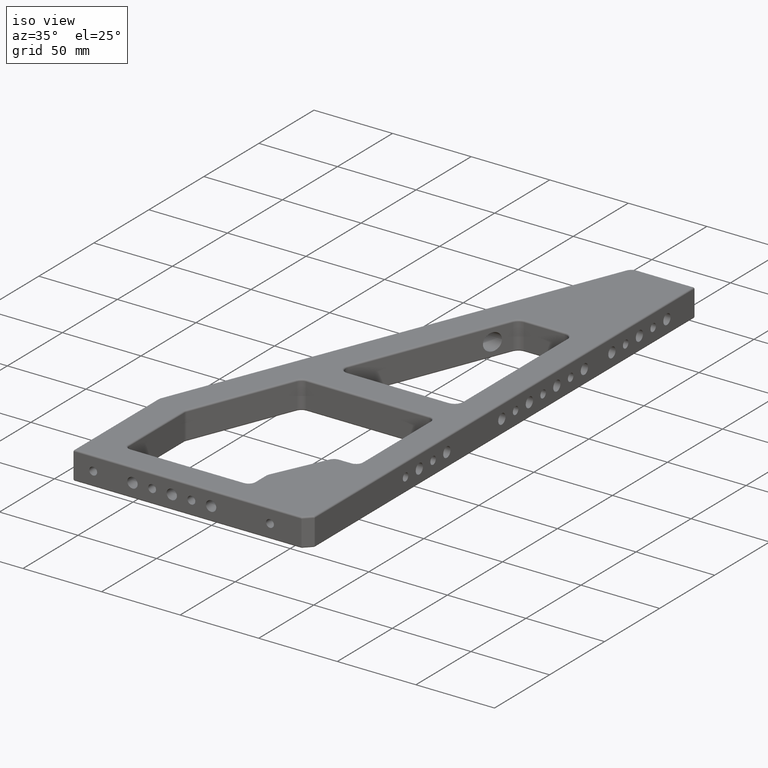
[diagram: clean part render]
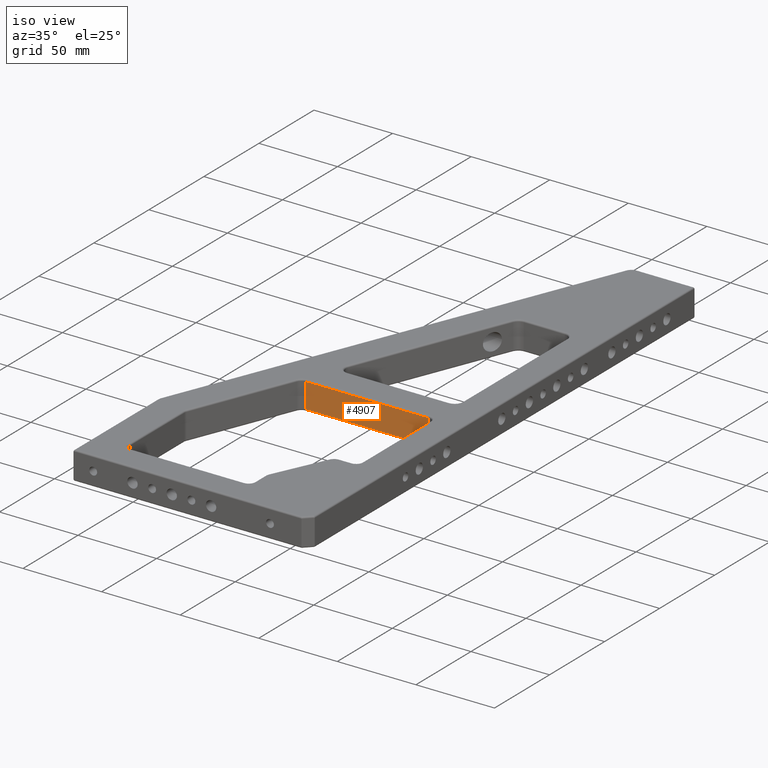
[diagram: same view with one face highlighted and labeled with its STEP entity id]
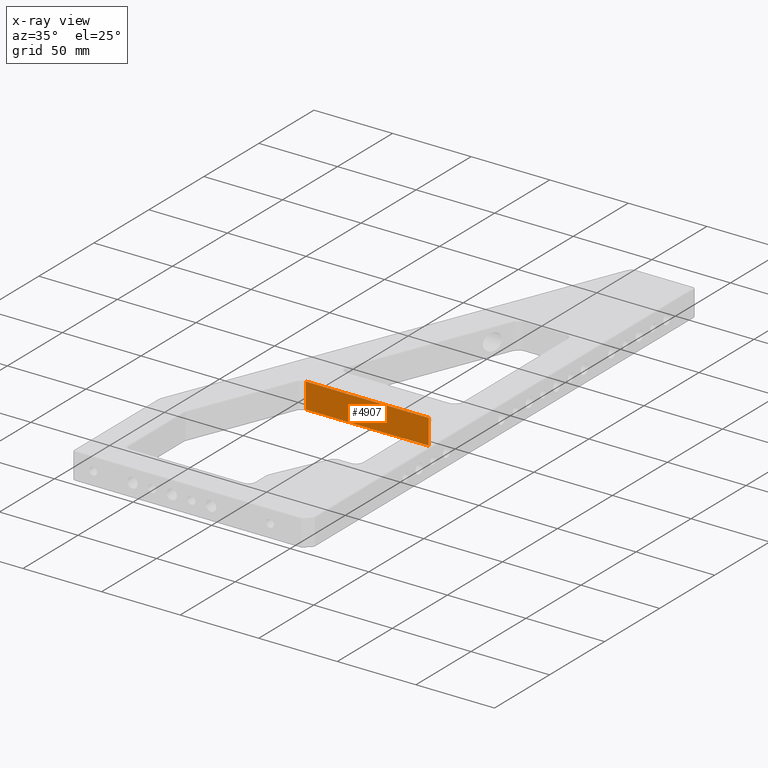
[diagram: x-ray of the same camera — body ghosted, the highlighted face saturated]
A machine part, iso view. The second image highlights one B-rep face of the part: STEP entity #4907.
The next image is the same camera in x-ray: the body ghosted, the highlighted face saturated — about 0% of this face is hidden behind the body in this view.
In plain terms, the highlighted planar face has unit normal (0, 1, 0).
Its self-contained STEP definition (entity closure, byte-faithful):
#1 = DIRECTION ( 'NONE',  ( 0.0000000000000000000, -0.0000000000000000000, 1.000000000000000000 ) ) ;
#80 = CARTESIAN_POINT ( 'NONE',  ( 47.06975713095528100, 140.0000000000000000, -2.000000000000001800 ) ) ;
#107 = DIRECTION ( 'NONE',  ( -0.0000000000000000000, 1.000000000000000000, 0.0000000000000000000 ) ) ;
#185 = CARTESIAN_POINT ( 'NONE',  ( 49.76779119832499300, 140.0000000000000000, 16.99999999999999600 ) ) ;
#419 = LINE ( 'NONE', #1076, #4993 ) ;
#488 = EDGE_CURVE ( 'NONE', #4402, #1554, #4327, .T. ) ;
#542 = PLANE ( 'NONE',  #1250 ) ;
#686 = VECTOR ( 'NONE', #2005, 1000.000000000000000 ) ;
#726 = VERTEX_POINT ( 'NONE', #3093 ) ;
#1004 = LINE ( 'NONE', #2722, #3274 ) ;
#1076 = CARTESIAN_POINT ( 'NONE',  ( 49.76779119832499300, 140.0000000000000000, 0.0000000000000000000 ) ) ;
#1250 = AXIS2_PLACEMENT_3D ( 'NONE', #80, #107, #3281 ) ;
#1253 = CARTESIAN_POINT ( 'NONE',  ( 128.0000000000000000, 140.0000000000000000, 1.000000000000000900 ) ) ;
#1350 = LINE ( 'NONE', #185, #3611 ) ;
#1554 = VERTEX_POINT ( 'NONE', #1253 ) ;
#2005 = DIRECTION ( 'NONE',  ( 1.000000000000000000, -0.0000000000000000000, -0.0000000000000000000 ) ) ;
#2239 = ORIENTED_EDGE ( 'NONE', *, *, #5302, .T. ) ;
#2722 = CARTESIAN_POINT ( 'NONE',  ( 128.0000000000000000, 140.0000000000000000, 18.00000000000000000 ) ) ;
#3093 = CARTESIAN_POINT ( 'NONE',  ( 128.0000000000000000, 140.0000000000000000, 16.99999999999999600 ) ) ;
#3169 = ORIENTED_EDGE ( 'NONE', *, *, #488, .T. ) ;
#3274 = VECTOR ( 'NONE', #1, 1000.000000000000000 ) ;
#3281 = DIRECTION ( 'NONE',  ( 0.0000000000000000000, -0.0000000000000000000, 1.000000000000000000 ) ) ;
#3357 = DIRECTION ( 'NONE',  ( -1.000000000000000000, 0.0000000000000000000, 0.0000000000000000000 ) ) ;
#3371 = CARTESIAN_POINT ( 'NONE',  ( 47.06975713095528100, 140.0000000000000000, 1.000000000000000000 ) ) ;
#3611 = VECTOR ( 'NONE', #3357, 1000.000000000000000 ) ;
#3919 = FACE_OUTER_BOUND ( 'NONE', #5788, .T. ) ;
#4092 = VERTEX_POINT ( 'NONE', #5184 ) ;
#4239 = ORIENTED_EDGE ( 'NONE', *, *, #4826, .T. ) ;
#4265 = DIRECTION ( 'NONE',  ( -0.0000000000000000000, 0.0000000000000000000, -1.000000000000000000 ) ) ;
#4327 = LINE ( 'NONE', #3371, #686 ) ;
#4402 = VERTEX_POINT ( 'NONE', #4494 ) ;
#4494 = CARTESIAN_POINT ( 'NONE',  ( 49.76779119832499300, 140.0000000000000000, 1.000000000000000000 ) ) ;
#4826 = EDGE_CURVE ( 'NONE', #1554, #726, #1004, .T. ) ;
#4907 = ADVANCED_FACE ( 'NONE', ( #3919 ), #542, .F. ) ;
#4993 = VECTOR ( 'NONE', #4265, 1000.000000000000000 ) ;
#5184 = CARTESIAN_POINT ( 'NONE',  ( 49.76779119832499300, 140.0000000000000000, 16.99999999999999600 ) ) ;
#5302 = EDGE_CURVE ( 'NONE', #4092, #4402, #419, .T. ) ;
#5321 = EDGE_CURVE ( 'NONE', #726, #4092, #1350, .T. ) ;
#5788 = EDGE_LOOP ( 'NONE', ( #2239, #3169, #4239, #5856 ) ) ;
#5856 = ORIENTED_EDGE ( 'NONE', *, *, #5321, .T. ) ;